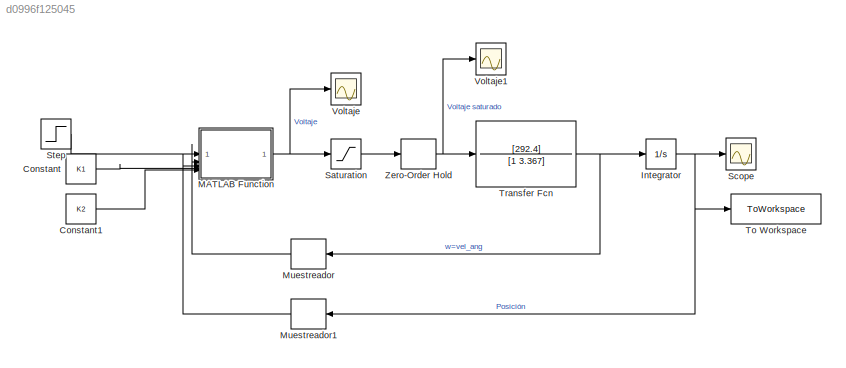
MODEL slx_d0996f125045
KIND model
CONFIG AbsTol = auto
CONFIG EnableMultiTasking = off
CONFIG FixedStep = auto
CONFIG MaxStep = auto
CONFIG MinStep = auto
CONFIG RelTol = 1e-3
CONFIG SampleTimeConstraint = Unconstrained
CONFIG SolverName = VariableStepAuto
CONFIG StartTime = 0.0
CONFIG StopTime = 5
BLOCK [Constant] Constant
  Value = K1
BLOCK [Constant] Constant1
  Value = K2
  VectorParams1D = off
BLOCK [Integrator] Integrator
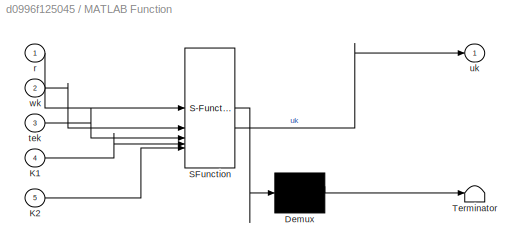
BLOCK [SubSystem] MATLAB Function
  ErrorFcn = Stateflow.Translate.translate
  PermitHierarchicalResolution = ExplicitOnly
  SFBlockType = MATLAB Function
  SystemSampleTime = T
  TreatAsAtomicUnit = on
BLOCK [Demux] MATLAB Function/ Demux 
  Outputs = 1
BLOCK [S-Function] MATLAB Function/ SFunction 
  EnableBusSupport = on
  FunctionName = sf_sfun
  PortCounts = [5 2]
  SFcnIsStateOwnerBlock = off
  SFunctionDeploymentMode = off
  Tag = Stateflow S-Function 2
BLOCK [Terminator] MATLAB Function/ Terminator 
BLOCK [Inport] MATLAB Function/K1
  Port = 4
BLOCK [Inport] MATLAB Function/K2
  Port = 5
BLOCK [Inport] MATLAB Function/r
BLOCK [Inport] MATLAB Function/tek
  Port = 3
BLOCK [Outport] MATLAB Function/uk
BLOCK [Inport] MATLAB Function/wk
  Port = 2
BLOCK [ZeroOrderHold] Muestreador
  NameLocation = top
  SampleTime = T
BLOCK [ZeroOrderHold] Muestreador1
  NameLocation = top
  SampleTime = T
BLOCK [Saturate] Saturation
  LowerLimit = -3
  UpperLimit = 3
BLOCK [Scope] Scope
  Floating = off
  NumInputPorts = 1
  ScopeSpecificationString = Simulink.scopes.TimeScopeBlockCfg('CurrentConfiguration', extmgr.ConfigurationSet(extmgr.Configuration('Core','General UI',true),extmgr.Configuration('Core','Source UI',true),extmgr.Configuration('Sources','WiredSimulink',true),extmgr.Configuration('Visuals','Time Domain',true,'SerializedDisplays',{struct('MinYLimReal','-21.67368','MaxYLimReal','195.06314','YLabelReal','','MinYLimMag','0.00000','M...<+1946ch>
BLOCK [Step] Step
  After = 100
  SampleTime = 0
  Time = 0
BLOCK [ToWorkspace] To Workspace
  FixptAsFi = on
  MaxDataPoints = inf
  SampleTime = T
  VariableName = simout_pos
BLOCK [TransferFcn] Transfer Fcn
  Denominator = [1 3.367]
  Numerator = [292.4]
BLOCK [Scope] Voltaje
  Floating = off
  NumInputPorts = 1
  ScopeSpecificationString = Simulink.scopes.TimeScopeBlockCfg('CurrentConfiguration', extmgr.ConfigurationSet(extmgr.Configuration('Core','General UI',true),extmgr.Configuration('Core','Source UI',true),extmgr.Configuration('Sources','WiredSimulink',true,'DataLoggingVariableName','ScopeData1'),extmgr.Configuration('Visuals','Time Domain',true,'SerializedDisplays',{struct('MinYLimReal','-0.88756','MaxYLimReal','4.37318','YLab...<+1600ch>
BLOCK [Scope] Voltaje1
  Floating = off
  NumInputPorts = 1
  ScopeSpecificationString = Simulink.scopes.TimeScopeBlockCfg('CurrentConfiguration', extmgr.ConfigurationSet(extmgr.Configuration('Core','General UI',true),extmgr.Configuration('Core','Source UI',true),extmgr.Configuration('Sources','WiredSimulink',true,'DataLoggingVariableName','ScopeData1'),extmgr.Configuration('Visuals','Time Domain',true,'SerializedDisplays',{struct('MinYLimReal','-0.78167','MaxYLimReal','3.42019','YLab...<+1609ch>
BLOCK [ZeroOrderHold] Zero-Order Hold
  SampleTime = T
LINE Constant1:1 -> MATLAB Function:5
LINE Constant:1 -> MATLAB Function:4
NET Integrator:1 -> Muestreador1:1, Scope:1, To Workspace:1
NET MATLAB Function:1 -> Saturation:1, Voltaje:1
LINE Muestreador1:1 -> MATLAB Function:3
LINE Muestreador:1 -> MATLAB Function:2
LINE Saturation:1 -> Zero-Order Hold:1
LINE Step:1 -> MATLAB Function:1
NET Transfer Fcn:1 -> Integrator:1, Muestreador:1
NET Zero-Order Hold:1 -> Transfer Fcn:1, Voltaje1:1
note: NET lines group one-source signal fan-out (src -> all destinations, sorted); 1:1 wires keep LINE
CHART MATLAB Function states=1 transitions=1
  STATE_LABEL 'eML_blk_kernel()'
  STATE_LABEL 'SCRIPT:\nfunction uk = fcn(r, wk, tek, K1, K2)\n\npersistent vk_1;\n\nif isempty(vk_1)\n    vk_1 = 0\nend;\n\nxk = [tek\n      wk];\n\nek = r-tek;\nvk = vk_1 + ek;\nuk = K1*vk - K2*xk;\n\nvk_1 = vk;'
CHART  states=0 transitions=0
